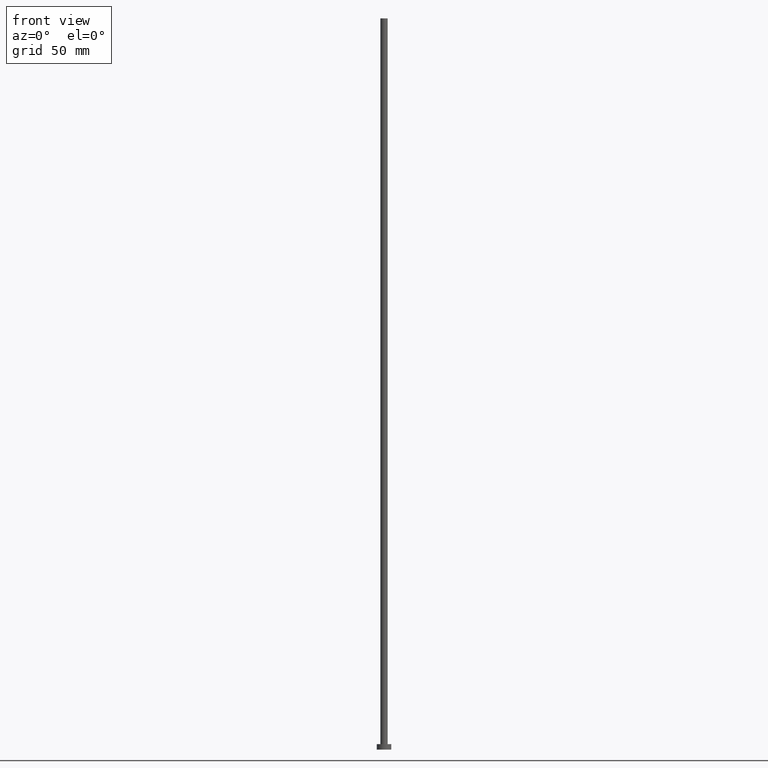
[diagram: clean part render]
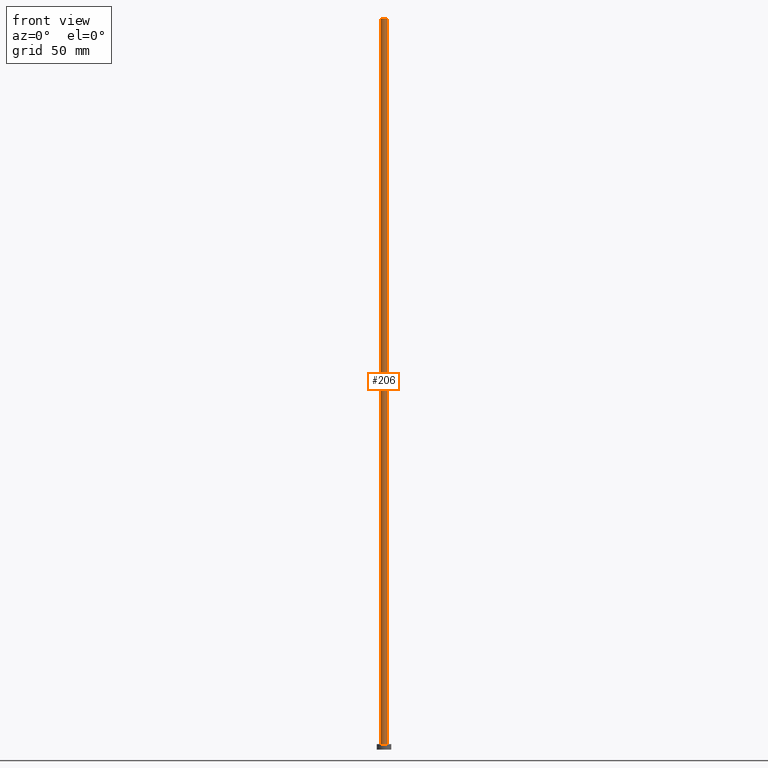
[diagram: same view with one face highlighted and labeled with its STEP entity id]
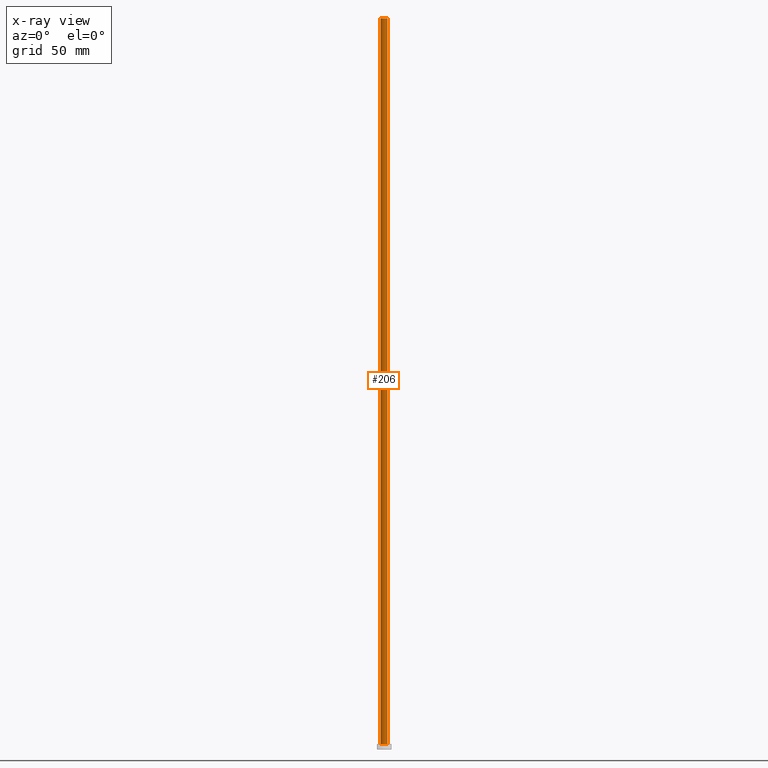
[diagram: x-ray of the same camera — body ghosted, the highlighted face saturated]
A machine part, front view. The second image highlights one B-rep face of the part: STEP entity #206.
The next image is the same camera in x-ray: the body ghosted, the highlighted face saturated — about 0% of this face is hidden behind the body in this view.
In plain terms, the highlighted cylindrical surface (edge-blend (fillet) strip) has radius 2 mm, axis along (-0, -0, -1).
Its self-contained STEP definition (entity closure, byte-faithful):
#11 = LINE ( 'NONE', #72, #87 ) ;
#15 = EDGE_CURVE ( 'NONE', #120, #63, #11, .T. ) ;
#16 = CIRCLE ( 'NONE', #163, 2.000000000000000000 ) ;
#19 = DIRECTION ( 'NONE',  ( -0.000000000000000000, -0.000000000000000000, -1.000000000000000000 ) ) ;
#20 = ORIENTED_EDGE ( 'NONE', *, *, #154, .T. ) ;
#39 = DIRECTION ( 'NONE',  ( 0.000000000000000000, 0.000000000000000000, 1.000000000000000000 ) ) ;
#43 = FACE_OUTER_BOUND ( 'NONE', #106, .T. ) ;
#49 = VERTEX_POINT ( 'NONE', #165 ) ;
#63 = VERTEX_POINT ( 'NONE', #132 ) ;
#72 = CARTESIAN_POINT ( 'NONE',  ( 2.000000000000000000, 2.449293598294706414E-16, 400.0000000000000000 ) ) ;
#77 = CARTESIAN_POINT ( 'NONE',  ( 0.000000000000000000, 0.000000000000000000, 3.000000000000000000 ) ) ;
#82 = EDGE_CURVE ( 'NONE', #83, #49, #105, .T. ) ;
#83 = VERTEX_POINT ( 'NONE', #209 ) ;
#87 = VECTOR ( 'NONE', #130, 1000.000000000000000 ) ;
#93 = CARTESIAN_POINT ( 'NONE',  ( 2.000000000000000000, 2.449293598294706414E-16, 400.0000000000000000 ) ) ;
#95 = AXIS2_PLACEMENT_3D ( 'NONE', #155, #39, #116 ) ;
#105 = LINE ( 'NONE', #108, #251 ) ;
#106 = EDGE_LOOP ( 'NONE', ( #156, #253, #167, #20 ) ) ;
#108 = CARTESIAN_POINT ( 'NONE',  ( -2.000000000000000000, 0.000000000000000000, 400.0000000000000000 ) ) ;
#114 = CYLINDRICAL_SURFACE ( 'NONE', #182, 2.000000000000000000 ) ;
#116 = DIRECTION ( 'NONE',  ( 1.000000000000000000, 0.000000000000000000, 0.000000000000000000 ) ) ;
#120 = VERTEX_POINT ( 'NONE', #93 ) ;
#130 = DIRECTION ( 'NONE',  ( -0.000000000000000000, -0.000000000000000000, -1.000000000000000000 ) ) ;
#132 = CARTESIAN_POINT ( 'NONE',  ( 2.000000000000000000, 2.449293598294706414E-16, 3.000000000000000000 ) ) ;
#141 = DIRECTION ( 'NONE',  ( 1.000000000000000000, 0.000000000000000000, 0.000000000000000000 ) ) ;
#154 = EDGE_CURVE ( 'NONE', #49, #63, #16, .T. ) ;
#155 = CARTESIAN_POINT ( 'NONE',  ( 0.000000000000000000, 0.000000000000000000, 400.0000000000000000 ) ) ;
#156 = ORIENTED_EDGE ( 'NONE', *, *, #15, .F. ) ;
#163 = AXIS2_PLACEMENT_3D ( 'NONE', #77, #194, #141 ) ;
#165 = CARTESIAN_POINT ( 'NONE',  ( -2.000000000000000000, 0.000000000000000000, 3.000000000000000000 ) ) ;
#167 = ORIENTED_EDGE ( 'NONE', *, *, #82, .T. ) ;
#177 = CARTESIAN_POINT ( 'NONE',  ( 0.000000000000000000, 0.000000000000000000, 400.0000000000000000 ) ) ;
#182 = AXIS2_PLACEMENT_3D ( 'NONE', #177, #19, #252 ) ;
#192 = EDGE_CURVE ( 'NONE', #83, #120, #247, .T. ) ;
#194 = DIRECTION ( 'NONE',  ( 0.000000000000000000, 0.000000000000000000, 1.000000000000000000 ) ) ;
#206 = ADVANCED_FACE ( 'NONE', ( #43 ), #114, .T. ) ;
#209 = CARTESIAN_POINT ( 'NONE',  ( -2.000000000000000000, 0.000000000000000000, 400.0000000000000000 ) ) ;
#227 = DIRECTION ( 'NONE',  ( -0.000000000000000000, -0.000000000000000000, -1.000000000000000000 ) ) ;
#247 = CIRCLE ( 'NONE', #95, 2.000000000000000000 ) ;
#251 = VECTOR ( 'NONE', #227, 1000.000000000000000 ) ;
#252 = DIRECTION ( 'NONE',  ( -1.000000000000000000, 0.000000000000000000, 0.000000000000000000 ) ) ;
#253 = ORIENTED_EDGE ( 'NONE', *, *, #192, .F. ) ;